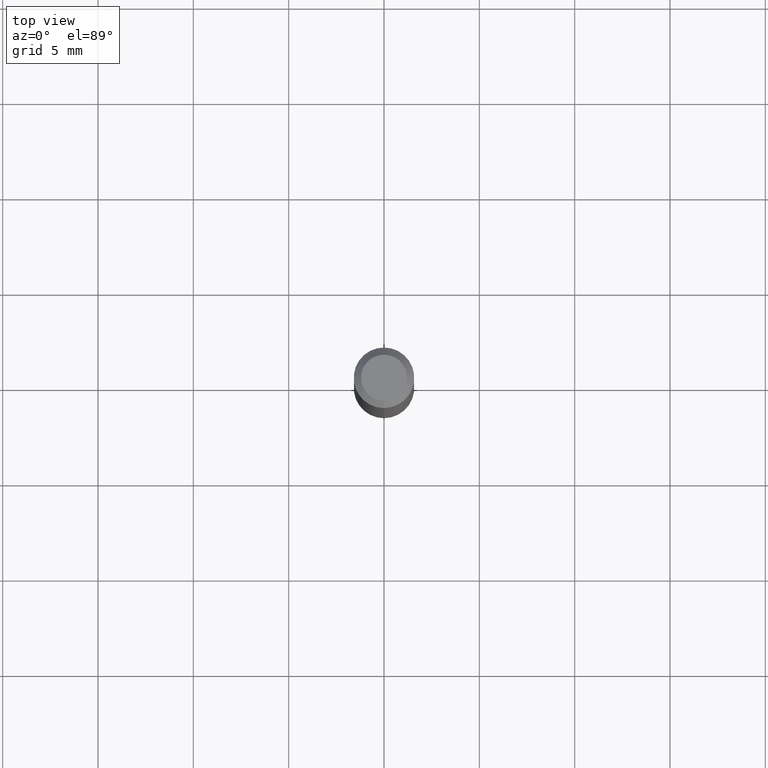
[diagram: clean part render]
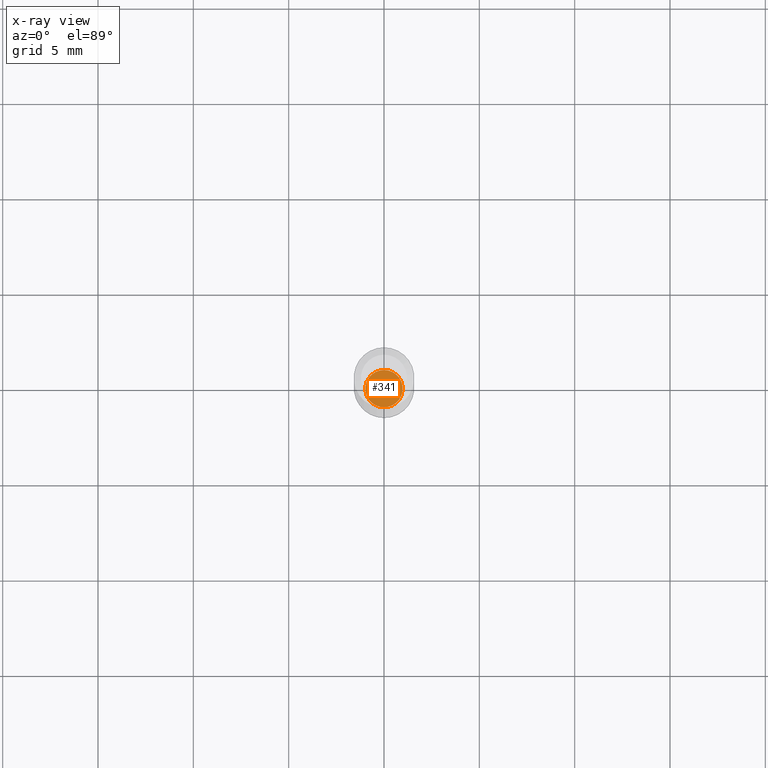
[diagram: x-ray — body ghosted, one internal face saturated and labeled with its STEP entity id]
A machine part, top view, then the same camera in x-ray: the body is ghosted and one INTERNAL B-rep face — a face not visible from any outside direction — is saturated and labeled: STEP entity #341.
In plain terms, the highlighted planar face has unit normal (-0, 0, 1).
Its self-contained STEP definition (entity closure, byte-faithful):
#16 = EDGE_LOOP ( 'NONE', ( #271, #440 ) ) ;
#23 = DIRECTION ( 'NONE',  ( -2.445435285253421028E-29, 3.491529342725254773E-15, 1.000000000000000000 ) ) ;
#59 = AXIS2_PLACEMENT_3D ( 'NONE', #134, #284, #438 ) ;
#70 = CARTESIAN_POINT ( 'NONE',  ( 3.210856529537742007E-29, -4.584378026998260520E-15, -1.313000000000000167 ) ) ;
#108 = EDGE_CURVE ( 'NONE', #254, #244, #272, .T. ) ;
#113 = CARTESIAN_POINT ( 'NONE',  ( 2.756905814749505827E-16, 0.03854999999999541432, -1.313000000000000167 ) ) ;
#134 = CARTESIAN_POINT ( 'NONE',  ( 3.210856529537742007E-29, -4.584378026998260520E-15, -1.313000000000000167 ) ) ;
#153 = PLANE ( 'NONE',  #205 ) ;
#165 = CARTESIAN_POINT ( 'NONE',  ( 3.210856529537742007E-29, -4.584378026998260520E-15, -1.313000000000000167 ) ) ;
#171 = DIRECTION ( 'NONE',  ( -2.445435285253421308E-29, 3.491529342725255167E-15, 1.000000000000000000 ) ) ;
#184 = DIRECTION ( 'NONE',  ( -6.982962677686265922E-15, -1.000000000000000000, 3.491529342725254773E-15 ) ) ;
#205 = AXIS2_PLACEMENT_3D ( 'NONE', #70, #23, #184 ) ;
#223 = AXIS2_PLACEMENT_3D ( 'NONE', #165, #171, #480 ) ;
#244 = VERTEX_POINT ( 'NONE', #113 ) ;
#254 = VERTEX_POINT ( 'NONE', #376 ) ;
#271 = ORIENTED_EDGE ( 'NONE', *, *, #108, .F. ) ;
#272 = CIRCLE ( 'NONE', #59, 0.03855000000000000093 ) ;
#284 = DIRECTION ( 'NONE',  ( -2.445435285253421308E-29, 3.491529342725255167E-15, 1.000000000000000000 ) ) ;
#326 = CIRCLE ( 'NONE', #223, 0.03855000000000000093 ) ;
#341 = ADVANCED_FACE ( 'NONE', ( #469 ), #153, .F. ) ;
#376 = CARTESIAN_POINT ( 'NONE',  ( -2.691932112247734171E-16, -0.03855000000000458060, -1.313000000000000167 ) ) ;
#438 = DIRECTION ( 'NONE',  ( -6.982962677686265133E-15, -1.000000000000000000, 0.000000000000000000 ) ) ;
#440 = ORIENTED_EDGE ( 'NONE', *, *, #463, .F. ) ;
#463 = EDGE_CURVE ( 'NONE', #244, #254, #326, .T. ) ;
#469 = FACE_OUTER_BOUND ( 'NONE', #16, .T. ) ;
#480 = DIRECTION ( 'NONE',  ( -6.982962677686265133E-15, -1.000000000000000000, 0.000000000000000000 ) ) ;